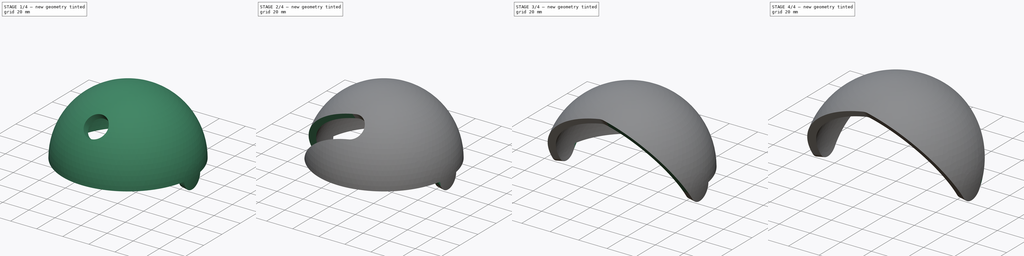
[diagram: build sequence overview — one tinted view per stage of 4, left to right]
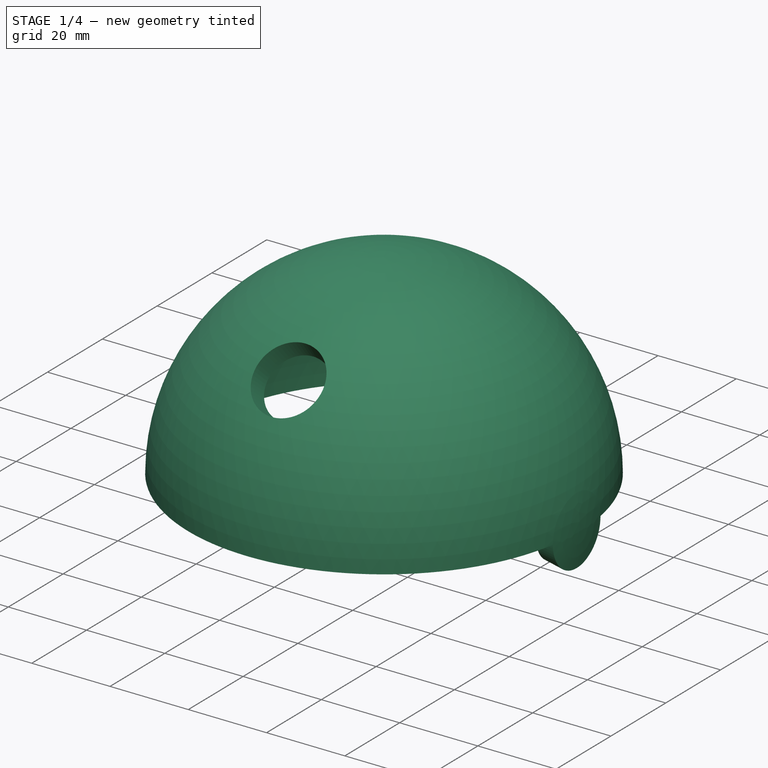
[diagram: stage 1 of 4 — iso view after this stage's code; geometry added in this stage tinted green]
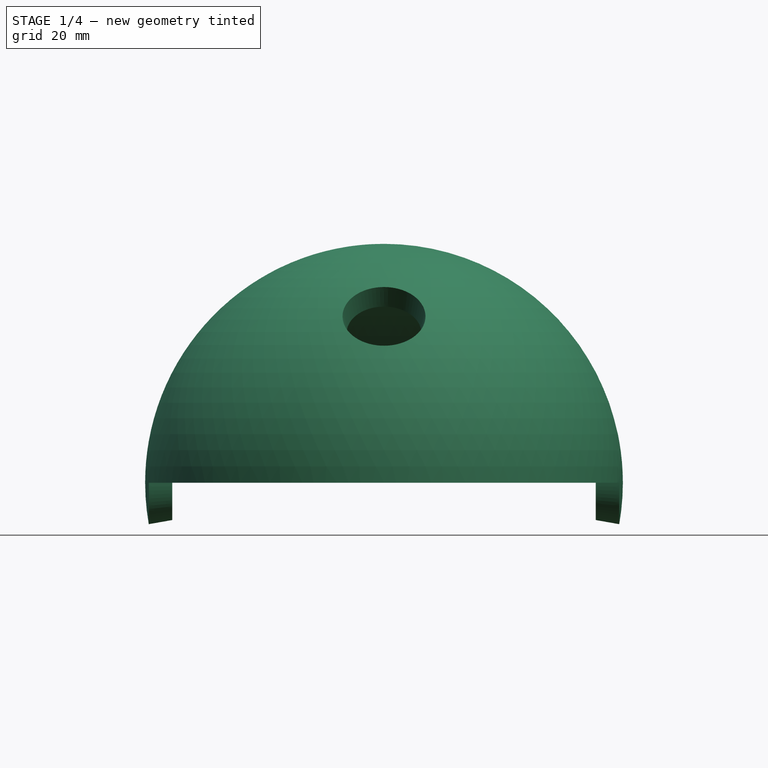
[diagram: stage 1 of 4 — front view after this stage's code; geometry added in this stage tinted green]
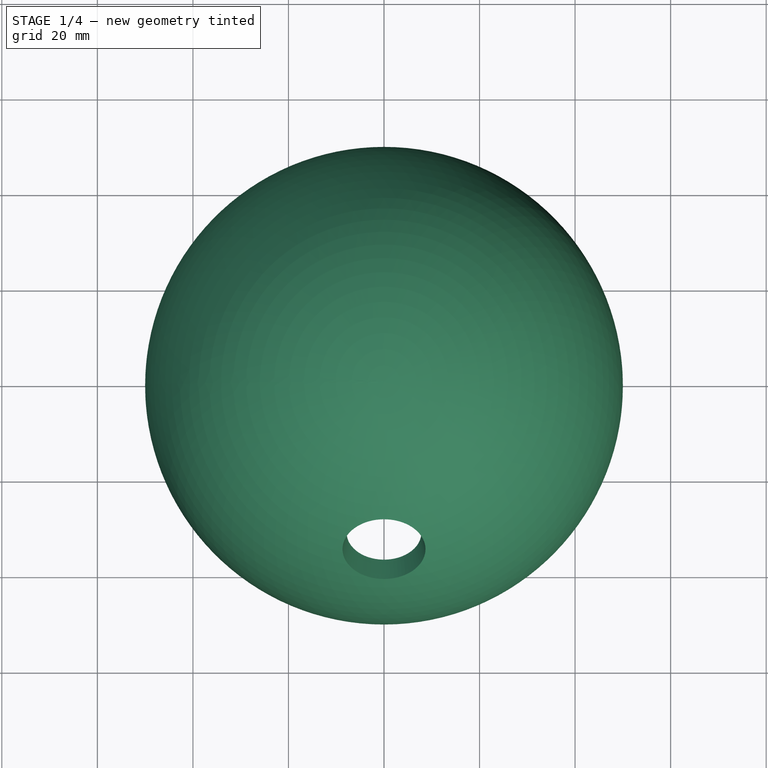
[diagram: stage 1 of 4 — top view after this stage's code; geometry added in this stage tinted green]
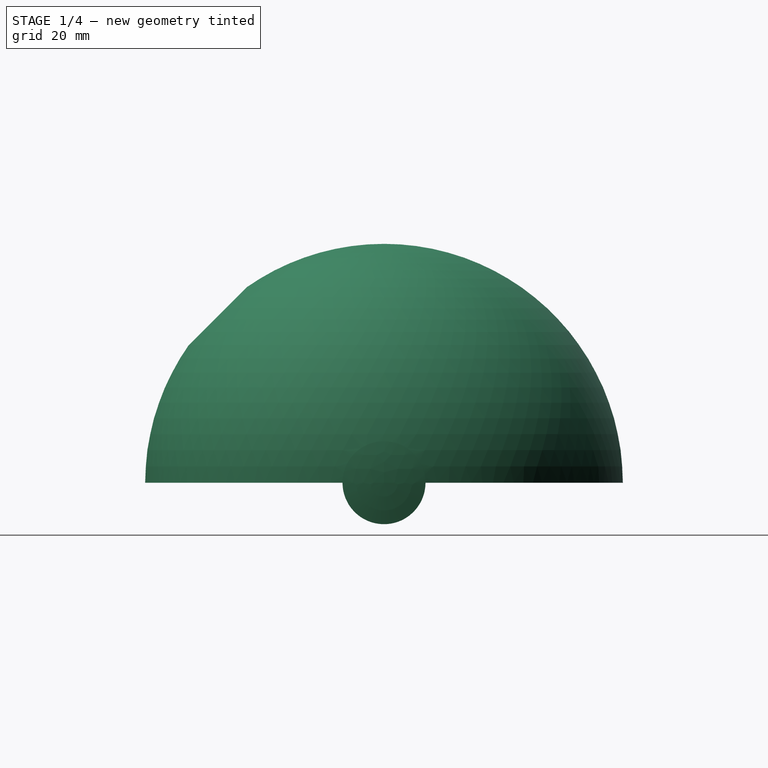
[diagram: stage 1 of 4 — right view after this stage's code; geometry added in this stage tinted green]
FCSTD DOCUMENT  (FreeCAD 0.20R29177 (Git))
Label: 2d_joint_3_0009
License: All rights reserved
LicenseURL: http://en.wikipedia.org/wiki/All_rights_reserved
objects: Sketcher::SketchObject×12, PartDesign::Plane×10, PartDesign::Revolution×6, PartDesign::Groove×6, PartDesign::CoordinateSystem×2, Spreadsheet::Sheet×1, PartDesign::Body×1, App::Part×1
note: 49 computed .brp shape members not serialized (recipe doc carries the construction recipe); baked Part::Feature solids carry a one-line shape summary decoded from their .brp

FEATURE [Spreadsheet::Sheet] Spreadsheet  label="Params"
  cells = A2=Inner Radius:; B2(InnerRadius)==45mm; A3=Outer Radius:; B3(OuterRadius)==50mm; A4=Eye Size:; B4(EyeSize)==10deg; A5=Front Range Of Motion:; B5(FrontROM)==45deg; A6=Back Range Of Motion:; B6(BackROM)==45deg; A9=Front Distance; B9(FrontD)==45deg; C9=*This is the distance between the center of the eye, and the middle between center of eye and center of eye gap, and it's alway 45 deg.; A10=Front Beta; B10(FrontBeta)==acos(tan(EyeSize) / tan(FrontD)); A11=Front Stop Width; B11(FrontStopWidth)==asin(sin(FrontBeta) * sin(FrontD)); A12=Front Stop Angle; B12(FrontStopAngle)==acos(tan(FrontStopWidth) / tan(FrontD)); A14=Back Distance; B14(BackD)==45deg; C14=*Hmm, there is no difference in the calculations of Back and Front Side; A15=Back Beta; B15(BackBeta)==acos(tan(EyeSize) / tan(BackD)); C15=The only actual DIfference is the Range of Motion; everything else is just rotated to match; A16=Back Stop Width; B16(BackStopWidth)==asin(sin(BackBeta) * sin(BackD)); A17=Back Stop Angle; B17(BackStopAngle)==acos(tan(BackStopWidth) / tan(BackD))
FEATURE [Sketcher::SketchObject] Sketch008
  FullyConstrained = true
  MapMode = 5
  Placement = pos=(0,0,0) rot=(1,0,0;1.5708rad)
  Support = -> [XZ_Plane005]
  expr: Constraints[10] = <<Params>>.OuterRadius
  expr: Constraints[11] = <<Params>>.InnerRadius
  sketch-geometry (4):
    g0: LineSegment StartX=-45 StartY=5.5e-15 StartZ=0 EndX=-50 EndY=6.1e-15 EndZ=0
    g1: LineSegment StartX=2.8e-15 StartY=45 StartZ=0 EndX=3.1e-15 EndY=50 EndZ=0
    g2: ArcOfCircle CenterX=0 CenterY=0 CenterZ=0 NormalX=0 NormalY=0 NormalZ=1 AngleXU=0 Radius=45 StartAngle=1.5708 EndAngle=3.14159
    g3: ArcOfCircle CenterX=0 CenterY=0 CenterZ=0 NormalX=0 NormalY=0 NormalZ=1 AngleXU=0 Radius=50 StartAngle=1.5708 EndAngle=3.14159
  constraints (12):
    c: PointOnObject(g0,g-1)
    c: PointOnObject(g0,g-1)
    c: PointOnObject(g1,g-2)
    c: PointOnObject(g1,g-2)
    c: Coincident(g2,g-1)
    c: Coincident(g2,g1)
    c: Coincident(g2,g0)
    c: Coincident(g3,g2)
    c: Coincident(g3,g1)
    c: Coincident(g3,g0)
    c: Radius(g3) = 50
    c: Radius(g2) = 45
FEATURE [PartDesign::Revolution] Revolution007  label="UpperHemisphere"
  Angle = 360
  Axis = (0,-2e-16,1)
  Base = (0,0,0)
  Placement = pos=(0,0,0) rot=(1,0,0;1.5708rad)
  Profile = -> Sketch008
  ReferenceAxis = -> Sketch008 [V_Axis]
  Refine = true
FEATURE [PartDesign::Plane] DatumPlane001  label="FrontGapPlane"
  AttachmentOffset = pos=(0,0,0) rot=(0,0,1;-0.785398rad)
  Length = 113.573
  MapMode = 4
  Placement = pos=(0,0,0) rot=(-0.678598,-0.281085,-0.678598;3.68962rad)
  ResizeMode = 0
  Support = -> [Revolution007]
  Width = 113.573
  expr: .AttachmentOffset.Rotation.Angle = -<<Params>>.FrontROM
FEATURE [Sketcher::SketchObject] Sketch
  FullyConstrained = true
  MapMode = 5
  Placement = pos=(0,0,0) rot=(0.678598,0.281085,0.678598;2.59356rad)
  Support = -> [DatumPlane001]
  expr: Constraints[10] = <<Params>>.OuterRadius
  expr: Constraints[7] = <<Params>>.EyeSize
  expr: Constraints[8] = <<Params>>.EyeSize
  expr: Constraints[9] = <<Params>>.InnerRadius
  sketch-geometry (5):
    g0: LineSegment StartX=0 StartY=45 StartZ=0 EndX=0 EndY=50 EndZ=0
    g1: LineSegment StartX=7.81417 StartY=44.3163 StartZ=0 EndX=8.68241 EndY=49.2404 EndZ=0
    g2: LineSegment StartX=7.81417 StartY=44.3163 StartZ=0 EndX=9e-16 EndY=0 EndZ=0
    g3: ArcOfCircle CenterX=0 CenterY=0 CenterZ=0 NormalX=0 NormalY=0 NormalZ=1 AngleXU=0 Radius=45 StartAngle=1.39626 EndAngle=1.5708
    g4: ArcOfCircle CenterX=0 CenterY=0 CenterZ=0 NormalX=0 NormalY=0 NormalZ=1 AngleXU=0 Radius=50 StartAngle=1.39626 EndAngle=1.5708
  constraints (14):
    c: PointOnObject(g0,g-2)
    c: PointOnObject(g0,g-2)
    c: Coincident(g2,g1)
    c: Coincident(g3,g1)
    c: Coincident(g3,g0)
    c: Coincident(g4,g1)
    c: Coincident(g4,g0)
    c: Angle(g2,g0) = 0.174533
    c: Angle(g1,g0) = 0.174533
    c: Radius(g3) = 45
    c: Radius(g4) = 50
    c: Coincident(g-1,g2)
    c: Coincident(g2,g4)
    c: Coincident(g4,g3)
FEATURE [Sketcher::SketchObject] Sketch009
  FullyConstrained = true
  MapMode = 5
  Placement = pos=(0,0,0) rot=(1,0,0;1.5708rad)
  Support = -> [XZ_Plane005]
  expr: Constraints[10] = <<Params>>.EyeSize
  expr: Constraints[11] = <<Params>>.EyeSize
  expr: Constraints[12] = <<Params>>.InnerRadius
  expr: Constraints[13] = <<Params>>.OuterRadius
  expr: Constraints[24] = <<Params>>.EyeSize
  expr: Constraints[25] = <<Params>>.EyeSize
  expr: Constraints[26] = <<Params>>.InnerRadius
  expr: Constraints[27] = <<Params>>.OuterRadius
  sketch-geometry (10):
    g0: LineSegment StartX=-45 StartY=5.5e-15 StartZ=0 EndX=-50 EndY=6.1e-15 EndZ=0
    g1: LineSegment StartX=-44.3163 StartY=7.81417 StartZ=0 EndX=-49.2404 EndY=8.68241 EndZ=0
    g2: LineSegment StartX=-44.3163 StartY=7.81417 StartZ=0 EndX=0 EndY=0 EndZ=0
    g3: ArcOfCircle CenterX=0 CenterY=0 CenterZ=0 NormalX=0 NormalY=0 NormalZ=1 AngleXU=0 Radius=45 StartAngle=2.96706 EndAngle=3.14159
    g4: ArcOfCircle CenterX=0 CenterY=0 CenterZ=0 NormalX=0 NormalY=0 NormalZ=1 AngleXU=0 Radius=50 StartAngle=2.96706 EndAngle=3.14159
    g5: LineSegment StartX=45 StartY=0 StartZ=0 EndX=50 EndY=0 EndZ=0
    g6: LineSegment StartX=44.3163 StartY=7.81417 StartZ=0 EndX=49.2404 EndY=8.68241 EndZ=0
    g7: LineSegment StartX=44.3163 StartY=7.81417 StartZ=0 EndX=0 EndY=0 EndZ=0
    g8: ArcOfCircle CenterX=0 CenterY=0 CenterZ=0 NormalX=0 NormalY=0 NormalZ=1 AngleXU=0 Radius=45 StartAngle=0 EndAngle=0.174533
    g9: ArcOfCircle CenterX=0 CenterY=0 CenterZ=0 NormalX=0 NormalY=0 NormalZ=1 AngleXU=0 Radius=50 StartAngle=0 EndAngle=0.174533
  constraints (28):
    c: PointOnObject(g0,g-1)
    c: PointOnObject(g0,g-1)
    c: Coincident(g2,g1)
    c: Coincident(g2,g-1)
    c: Coincident(g3,g2)
    c: Coincident(g3,g1)
    c: Coincident(g3,g0)
    c: Coincident(g4,g3)
    c: Coincident(g4,g1)
    c: Coincident(g4,g0)
    c: Angle(g2,g0) = 0.174533
    c: Angle(g1,g0) = 0.174533
    c: Radius(g3) = 45
    c: Radius(g4) = 50
    c: PointOnObject(g5,g-1)
    c: Horizontal(g5)
    c: Coincident(g7,g6)
    c: Coincident(g7,g3)
    c: Coincident(g8,g3)
    c: Coincident(g8,g5)
    c: Coincident(g8,g6)
    c: Coincident(g9,g3)
    c: Coincident(g9,g5)
    c: Coincident(g9,g6)
    c: Angle(g5,g6) = 0.174533
    c: Angle(g5,g7) = 0.174533
    c: Radius(g8) = 45
    c: Radius(g9) = 50
FEATURE [PartDesign::Revolution] Revolution  label="Eyes"
  Angle = 360
  Axis = (1,0,0)
  Base = (0,0,0)
  BaseFeature = -> Revolution007
  Placement = pos=(0,0,0) rot=(1,0,0;1.5708rad)
  Profile = -> Sketch009
  ReferenceAxis = -> Sketch009 [H_Axis]
  Refine = true
FEATURE [PartDesign::Groove] Groove  label="FrontGap"
  Angle = 360
  Axis = (2e-16,-0.707107,0.707107)
  Base = (0,0,0)
  BaseFeature = -> Revolution
  Placement = pos=(0,0,0) rot=(1,0,0;1.5708rad)
  Profile = -> Sketch
  ReferenceAxis = -> Sketch [V_Axis]
  Refine = true
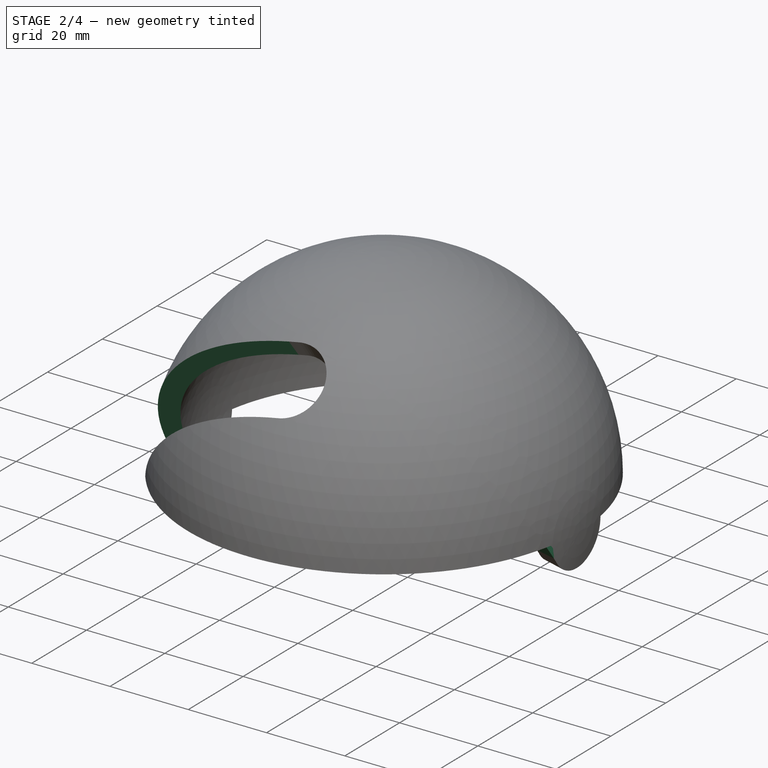
[diagram: stage 2 of 4 — iso view after this stage's code; geometry added in this stage tinted green]
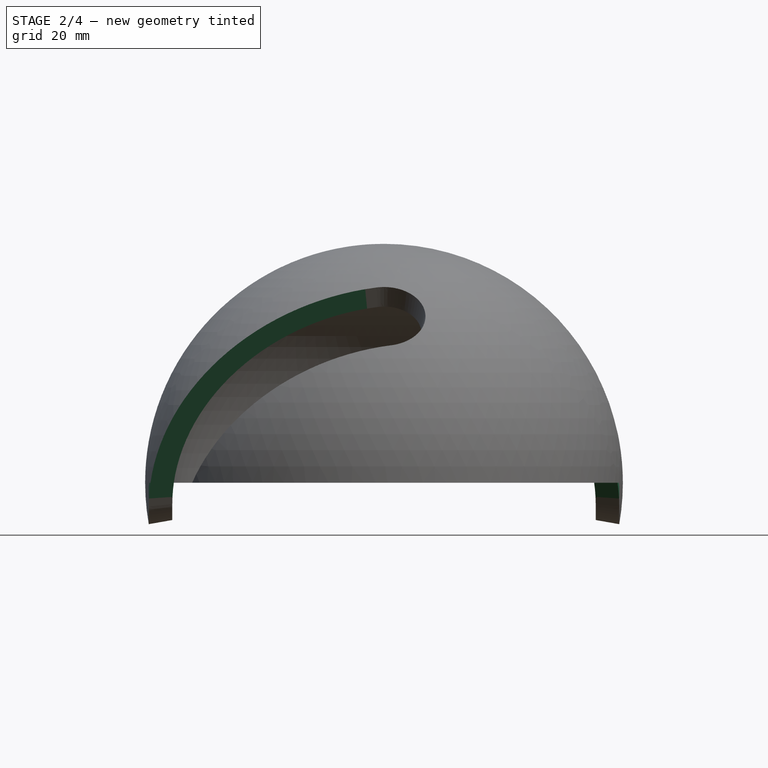
[diagram: stage 2 of 4 — front view after this stage's code; geometry added in this stage tinted green]
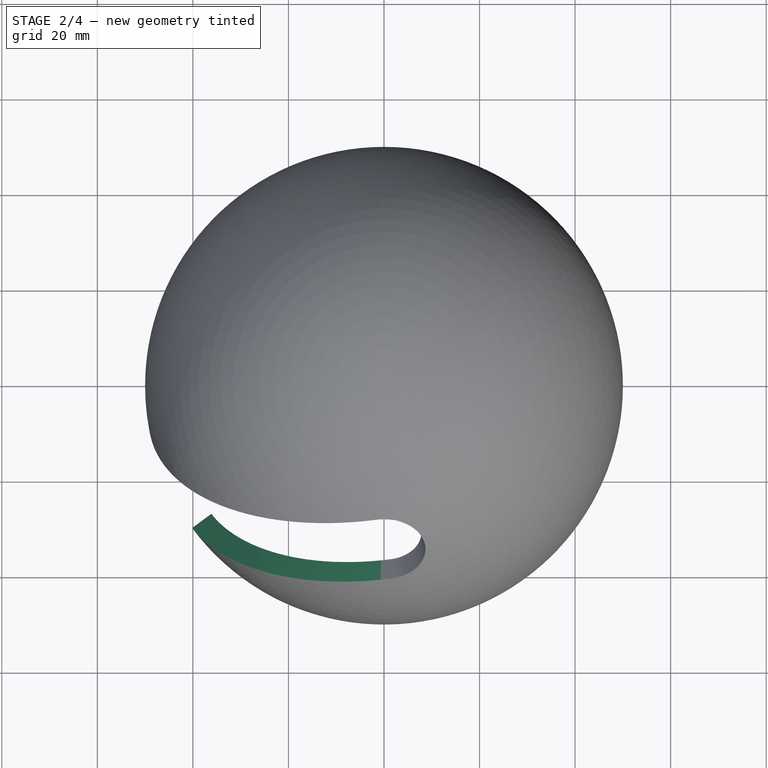
[diagram: stage 2 of 4 — top view after this stage's code; geometry added in this stage tinted green]
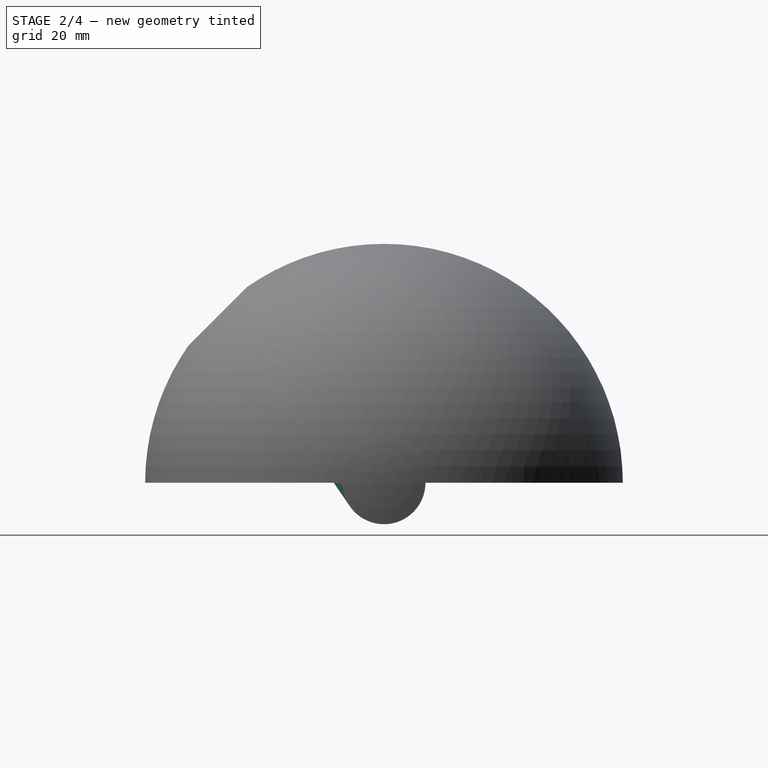
[diagram: stage 2 of 4 — right view after this stage's code; geometry added in this stage tinted green]
FEATURE [PartDesign::CoordinateSystem] Local_CS  label="FrontTiltCS"
  AttacherType = Attacher::AttachEngine3D
  AttachmentOffset = pos=(0,0,0) rot=(1,0,0;-0.785398rad)
  MapMode = 2
  Placement = pos=(0,0,0) rot=(-1,0,0;5.49779rad)
  Support = -> [Revolution007]
  expr: .AttachmentOffset.Rotation.Angle = -<<Params>>.FrontROM
FEATURE [PartDesign::Plane] DatumPlane002  label="FrontLeftPlane"
  AttachmentOffset = pos=(0,0,0) rot=(0,1,0;0.785398rad)
  Length = 160.461
  MapMode = 2
  Placement = pos=(0,0,0) rot=(0.678598,0.678598,0.281085;1.09606rad)
  ResizeMode = 0
  Support = -> [Local_CS]
  Width = 117.471
  expr: .AttachmentOffset.Rotation.Angle = <<Params>>.FrontD
FEATURE [PartDesign::Plane] DatumPlane  label="FrontLeftStopPlane"
  AttachmentOffset = pos=(0,0,0) rot=(1,0,0;-0.248113rad)
  Length = 161.92
  MapMode = 2
  Placement = pos=(0,0,0) rot=(-0.539524,-0.732031,-0.415986;5.33954rad)
  ResizeMode = 0
  Support = -> [DatumPlane002]
  Width = 131.413
  expr: .AttachmentOffset.Rotation.Angle = -<<Params>>.FrontStopAngle
FEATURE [Sketcher::SketchObject] Sketch010
  FullyConstrained = true
  MapMode = 5
  Placement = pos=(0,0,0) rot=(0.539524,0.732031,0.415986;0.943643rad)
  Support = -> [DatumPlane]
  expr: Constraints[12] = <<Params>>.EyeSize
  expr: Constraints[13] = <<Params>>.EyeSize
  expr: Constraints[16] = <<Params>>.InnerRadius
  expr: Constraints[17] = <<Params>>.OuterRadius
  expr: Constraints[18] = <<Params>>.OuterRadius
  sketch-geometry (7):
    g0: LineSegment StartX=-45 StartY=5.5e-15 StartZ=0 EndX=-50 EndY=6.1e-15 EndZ=0
    g1: LineSegment StartX=-44.3163 StartY=7.81417 StartZ=0 EndX=-49.2404 EndY=8.68241 EndZ=0
    g2: LineSegment StartX=0 StartY=0 StartZ=0 EndX=-44.3163 EndY=7.81417 EndZ=0
    g3: LineSegment StartX=0 StartY=0 StartZ=0 EndX=-45 EndY=5.5e-15 EndZ=0
    g4: ArcOfCircle CenterX=0 CenterY=0 CenterZ=0 NormalX=0 NormalY=0 NormalZ=1 AngleXU=0 Radius=45 StartAngle=2.96706 EndAngle=3.14159
    g5: ArcOfCircle CenterX=0 CenterY=0 CenterZ=0 NormalX=0 NormalY=0 NormalZ=1 AngleXU=0 Radius=50 StartAngle=2.96706 EndAngle=3.14159
    g6: LineSegment StartX=0 StartY=0 StartZ=0 EndX=-50 EndY=0 EndZ=0
  constraints (19):
    c: Coincident(g2,g-1)
    c: Coincident(g2,g1)
    c: Coincident(g3,g2)
    c: Coincident(g3,g0)
    c: Coincident(g4,g2)
    c: Coincident(g4,g1)
    c: Coincident(g4,g0)
    c: Coincident(g5,g4)
    c: Coincident(g5,g1)
    c: Coincident(g5,g0)
    c: Coincident(g6,g4)
    c: Horizontal(g6)
    c: Angle(g1,g6) = 0.174533
    c: Angle(g2,g6) = 0.174533
    c: Angle(g6,g0) = 0
    c: Angle(g6,g3) = 0
    c: Radius(g4) = 45
    c: Radius(g5) = 50
    c: DistanceX(g6,g6) = 50
FEATURE [PartDesign::Revolution] Revolution008  label="FrontLeftStop"
  Angle = 88.2183
  Axis = (-0.173648,0.808241,0.562666)
  Base = (0,0,0)
  BaseFeature = -> Groove
  Midplane = true
  Placement = pos=(0,0,0) rot=(1,0,0;1.5708rad)
  Profile = -> Sketch010
  ReferenceAxis = -> Sketch010 [V_Axis]
  Refine = true
  expr: Angle = 2 * <<Params>>.FrontStopWidth
FEATURE [Sketcher::SketchObject] Sketch011
  FullyConstrained = true
  MapMode = 5
  Placement = pos=(0,0,0) rot=(0.539524,0.732031,0.415986;0.943643rad)
  Support = -> [DatumPlane]
  expr: Constraints[10] = 2 * <<Params>>.EyeSize
  expr: Constraints[11] = 2 * <<Params>>.EyeSize
  expr: Constraints[12] = <<Params>>.InnerRadius
  expr: Constraints[13] = <<Params>>.OuterRadius
  sketch-geometry (5):
    g0: LineSegment StartX=-45 StartY=0 StartZ=0 EndX=-50 EndY=0 EndZ=0
    g1: LineSegment StartX=-42.2862 StartY=-15.3909 StartZ=0 EndX=-46.9846 EndY=-17.101 EndZ=0
    g2: LineSegment StartX=0 StartY=0 StartZ=0 EndX=-42.2862 EndY=-15.3909 EndZ=0
    g3: ArcOfCircle CenterX=0 CenterY=0 CenterZ=0 NormalX=0 NormalY=0 NormalZ=1 AngleXU=0 Radius=45 StartAngle=3.14159 EndAngle=3.49066
    g4: ArcOfCircle CenterX=0 CenterY=0 CenterZ=0 NormalX=0 NormalY=0 NormalZ=1 AngleXU=0 Radius=50 StartAngle=3.14159 EndAngle=3.49066
  constraints (14):
    c: PointOnObject(g0,g-1)
    c: PointOnObject(g0,g-1)
    c: Coincident(g2,g-1)
    c: Coincident(g2,g1)
    c: Coincident(g3,g2)
    c: Coincident(g3,g0)
    c: Coincident(g3,g1)
    c: Coincident(g4,g3)
    c: Coincident(g4,g0)
    c: Coincident(g4,g1)
    c: Angle(g0,g2) = 0.349066
    c: Angle(g0,g1) = 0.349066
    c: Radius(g3) = 45
    c: Radius(g4) = 50
FEATURE [PartDesign::Groove] Groove001  label="FrontLeftGap"
  Angle = 88.2183
  Axis = (-0.173648,0.808241,0.562666)
  Base = (0,0,0)
  BaseFeature = -> Revolution008
  Midplane = true
  Placement = pos=(0,0,0) rot=(1,0,0;1.5708rad)
  Profile = -> Sketch011
  ReferenceAxis = -> Sketch011 [V_Axis]
  Refine = true
  Reversed = true
  expr: Angle = 2 * <<Params>>.FrontStopWidth
FEATURE [PartDesign::Plane] DatumPlane004  label="FrontRightPlane"
  AttachmentOffset = pos=(0,0,0) rot=(0,1,0;-0.785398rad)
  Length = 160.461
  MapMode = 2
  Placement = pos=(0,0,0) rot=(-0.678598,0.678598,0.281085;5.18713rad)
  ResizeMode = 0
  Support = -> [Local_CS]
  Width = 117.471
  expr: .AttachmentOffset.Rotation.Angle = -<<Params>>.FrontD
FEATURE [PartDesign::Plane] DatumPlane003  label="FrontRightStopPlane"
  AttachmentOffset = pos=(0,0,0) rot=(1,0,0;-0.248113rad)
  Length = 161.92
  MapMode = 2
  Placement = pos=(0,0,0) rot=(-0.539524,0.732031,0.415986;5.33954rad)
  ResizeMode = 0
  Support = -> [DatumPlane004]
  Width = 131.413
  expr: .AttachmentOffset.Rotation.Angle = -<<Params>>.FrontStopAngle
FEATURE [Sketcher::SketchObject] Sketch012
  FullyConstrained = true
  MapMode = 5
  Placement = pos=(0,0,0) rot=(0.539524,-0.732031,-0.415986;0.943643rad)
  Support = -> [DatumPlane003]
  expr: Constraints[10] = <<Params>>.EyeSize
  expr: Constraints[11] = <<Params>>.EyeSize
  expr: Constraints[12] = <<Params>>.InnerRadius
  expr: Constraints[13] = <<Params>>.OuterRadius
  sketch-geometry (5):
    g0: LineSegment StartX=45 StartY=0 StartZ=0 EndX=50 EndY=0 EndZ=0
    g1: LineSegment StartX=44.3163 StartY=7.81417 StartZ=0 EndX=49.2404 EndY=8.68241 EndZ=0
    g2: ArcOfCircle CenterX=0 CenterY=0 CenterZ=0 NormalX=0 NormalY=0 NormalZ=1 AngleXU=0 Radius=45 StartAngle=0 EndAngle=0.174533
    g3: ArcOfCircle CenterX=0 CenterY=0 CenterZ=0 NormalX=0 NormalY=0 NormalZ=1 AngleXU=0 Radius=50 StartAngle=0 EndAngle=0.174533
    g4: LineSegment StartX=44.3163 StartY=7.81417 StartZ=0 EndX=0 EndY=0 EndZ=0
  constraints (14):
    c: PointOnObject(g0,g-1)
    c: PointOnObject(g0,g-1)
    c: Coincident(g2,g-1)
    c: Coincident(g2,g0)
    c: Coincident(g2,g1)
    c: Coincident(g3,g2)
    c: Coincident(g3,g0)
    c: Coincident(g3,g1)
    c: Coincident(g4,g1)
    c: Coincident(g4,g2)
    c: Angle(g0,g4) = 0.174533
    c: Angle(g0,g1) = 0.174533
    c: Radius(g2) = 45
    c: Radius(g3) = 50
FEATURE [PartDesign::Revolution] Revolution009  label="FrontRightStop"
  Angle = 88.2183
  Axis = (0.173648,0.808241,0.562666)
  Base = (0,0,0)
  BaseFeature = -> Groove001
  Midplane = true
  Placement = pos=(0,0,0) rot=(1,0,0;1.5708rad)
  Profile = -> Sketch012
  ReferenceAxis = -> Sketch012 [V_Axis]
  Refine = true
  Reversed = true
  expr: Angle = 2 * <<Params>>.FrontStopWidth
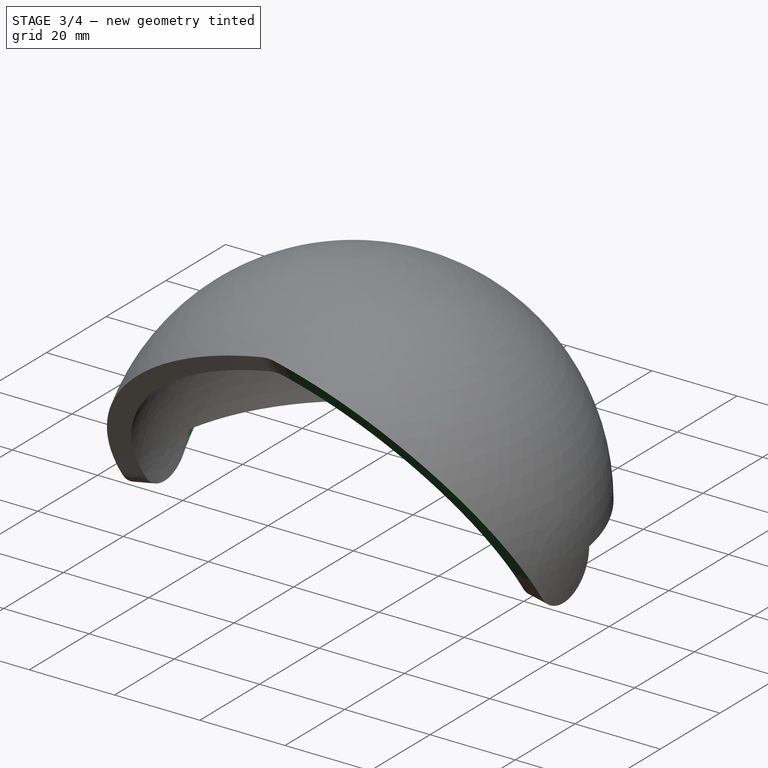
[diagram: stage 3 of 4 — iso view after this stage's code; geometry added in this stage tinted green]
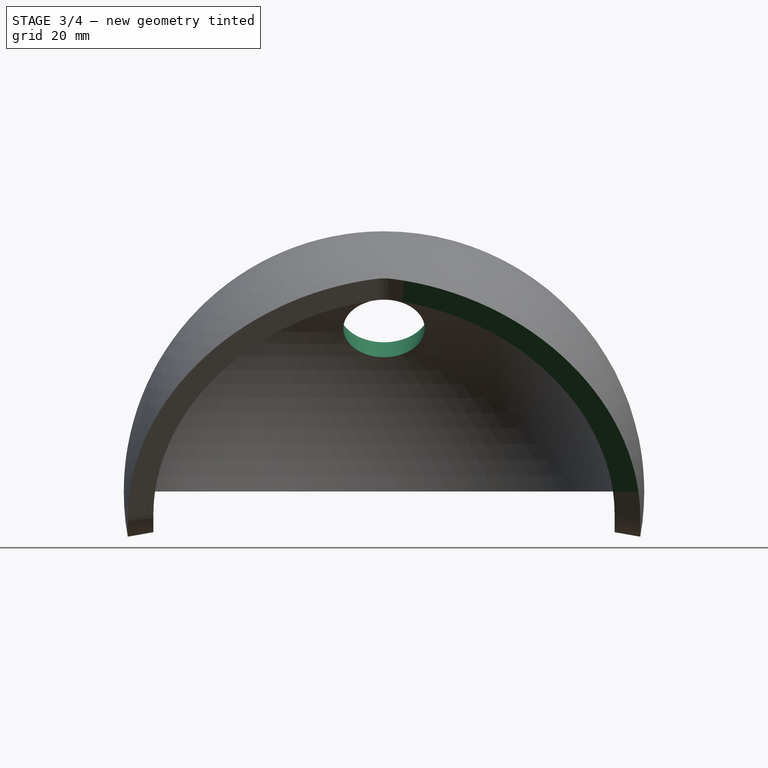
[diagram: stage 3 of 4 — front view after this stage's code; geometry added in this stage tinted green]
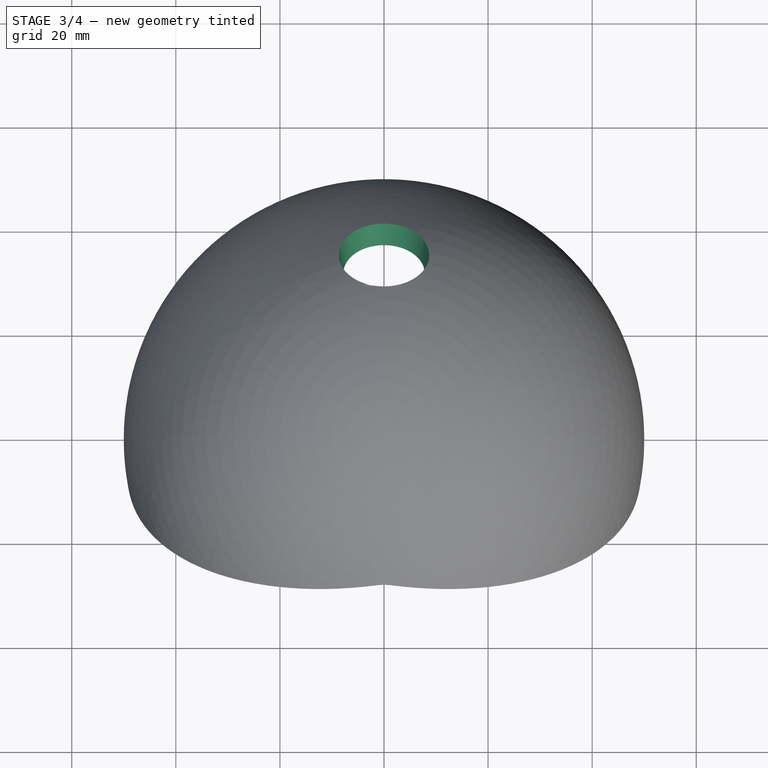
[diagram: stage 3 of 4 — top view after this stage's code; geometry added in this stage tinted green]
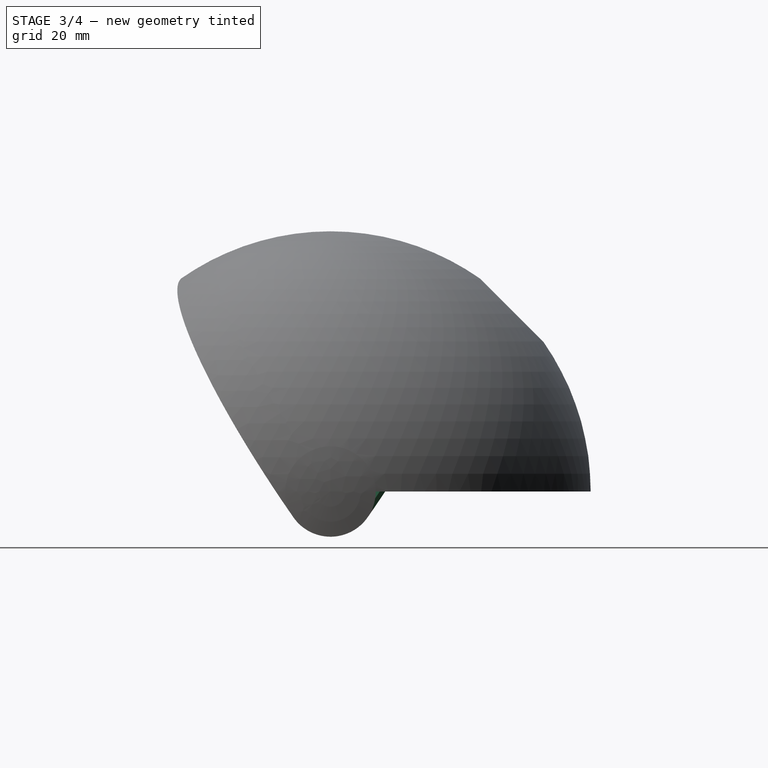
[diagram: stage 3 of 4 — right view after this stage's code; geometry added in this stage tinted green]
FEATURE [Sketcher::SketchObject] Sketch013
  FullyConstrained = true
  MapMode = 5
  Placement = pos=(0,0,0) rot=(0.539524,-0.732031,-0.415986;0.943643rad)
  Support = -> [DatumPlane003]
  expr: Constraints[10] = 2 * <<Params>>.EyeSize
  expr: Constraints[11] = 2 * <<Params>>.EyeSize
  expr: Constraints[12] = <<Params>>.InnerRadius
  expr: Constraints[13] = <<Params>>.OuterRadius
  sketch-geometry (5):
    g0: LineSegment StartX=45 StartY=0 StartZ=0 EndX=50 EndY=0 EndZ=0
    g1: LineSegment StartX=42.2862 StartY=-15.3909 StartZ=0 EndX=46.9846 EndY=-17.101 EndZ=0
    g2: LineSegment StartX=42.2862 StartY=-15.3909 StartZ=0 EndX=0 EndY=0 EndZ=0
    g3: ArcOfCircle CenterX=0 CenterY=0 CenterZ=0 NormalX=0 NormalY=0 NormalZ=1 AngleXU=0 Radius=45 StartAngle=5.93412 EndAngle=6.28319
    g4: ArcOfCircle CenterX=0 CenterY=0 CenterZ=0 NormalX=0 NormalY=0 NormalZ=1 AngleXU=0 Radius=50 StartAngle=5.93412 EndAngle=6.28319
  constraints (14):
    c: PointOnObject(g0,g-1)
    c: PointOnObject(g0,g-1)
    c: Coincident(g2,g1)
    c: Coincident(g2,g-1)
    c: Coincident(g3,g2)
    c: Coincident(g3,g1)
    c: Coincident(g3,g0)
    c: Coincident(g4,g3)
    c: Coincident(g4,g1)
    c: Coincident(g4,g0)
    c: Angle(g2,g0) = 0.349066
    c: Angle(g1,g0) = 0.349066
    c: Radius(g3) = 45
    c: Radius(g4) = 50
FEATURE [PartDesign::Groove] Groove002  label="FrontRightGap"
  Angle = 88.2183
  Axis = (0.173648,0.808241,0.562666)
  Base = (0,0,0)
  BaseFeature = -> Revolution009
  Midplane = true
  Placement = pos=(0,0,0) rot=(1,0,0;1.5708rad)
  Profile = -> Sketch013
  ReferenceAxis = -> Sketch013 [V_Axis]
  Refine = true
  expr: Angle = 2 * <<Params>>.FrontStopWidth
FEATURE [PartDesign::CoordinateSystem] Local_CS001  label="BackTiltCS"
  AttacherType = Attacher::AttachEngine3D
  AttachmentOffset = pos=(0,0,0) rot=(1,0,0;0.785398rad)
  MapMode = 2
  Placement = pos=(0,0,0) rot=(1,0,0;2.35619rad)
  Support = -> [Revolution007]
  expr: .AttachmentOffset.Rotation.Angle = <<Params>>.BackROM
FEATURE [PartDesign::Plane] DatumPlane005  label="BackGapPlane"
  AttachmentOffset = pos=(0,0,0) rot=(0,0,1;0.785398rad)
  Length = 113.573
  MapMode = 4
  Placement = pos=(0,0,0) rot=(0.678598,-0.281085,0.678598;3.68962rad)
  ResizeMode = 0
  Support = -> [Revolution007]
  Width = 113.573
  expr: .AttachmentOffset.Rotation.Angle = <<Params>>.BackROM
FEATURE [Sketcher::SketchObject] Sketch014
  FullyConstrained = true
  MapMode = 5
  Placement = pos=(0,0,0) rot=(0.678598,-0.281085,0.678598;3.68962rad)
  Support = -> [DatumPlane005]
  expr: Constraints[10] = <<Params>>.EyeSize
  expr: Constraints[11] = <<Params>>.EyeSize
  expr: Constraints[12] = <<Params>>.InnerRadius
  expr: Constraints[13] = <<Params>>.OuterRadius
  sketch-geometry (5):
    g0: LineSegment StartX=-8.3e-15 StartY=-45 StartZ=0 EndX=-9.2e-15 EndY=-50 EndZ=0
    g1: LineSegment StartX=7.81417 StartY=-44.3163 StartZ=0 EndX=8.68241 EndY=-49.2404 EndZ=0
    g2: LineSegment StartX=7.81417 StartY=-44.3163 StartZ=0 EndX=0 EndY=0 EndZ=0
    g3: ArcOfCircle CenterX=0 CenterY=0 CenterZ=0 NormalX=0 NormalY=0 NormalZ=1 AngleXU=0 Radius=45 StartAngle=4.71239 EndAngle=4.88692
    g4: ArcOfCircle CenterX=0 CenterY=0 CenterZ=0 NormalX=0 NormalY=0 NormalZ=1 AngleXU=0 Radius=50 StartAngle=4.71239 EndAngle=4.88692
  constraints (14):
    c: PointOnObject(g0,g-2)
    c: PointOnObject(g0,g-2)
    c: Coincident(g2,g1)
    c: Coincident(g2,g-1)
    c: Coincident(g3,g2)
    c: Coincident(g3,g0)
    c: Coincident(g3,g1)
    c: Coincident(g4,g3)
    c: Coincident(g4,g0)
    c: Coincident(g4,g1)
    c: Angle(g0,g2) = 0.174533
    c: Angle(g0,g1) = 0.174533
    c: Radius(g3) = 45
    c: Radius(g4) = 50
FEATURE [PartDesign::Groove] Groove003  label="BackGap"
  Angle = 360
  Axis = (0,-0.707107,-0.707107)
  Base = (0,0,0)
  BaseFeature = -> Groove002
  Placement = pos=(0,0,0) rot=(1,0,0;1.5708rad)
  Profile = -> Sketch014
  ReferenceAxis = -> Sketch014 [V_Axis]
  Refine = true
FEATURE [PartDesign::Plane] DatumPlane006  label="BackLeftPlane"
  AttachmentOffset = pos=(0,0,0) rot=(0,1,0;-0.785398rad)
  Length = 160.461
  MapMode = 2
  Placement = pos=(0,0,0) rot=(-0.912487,0.156558,0.377964;3.86433rad)
  ResizeMode = 0
  Support = -> [Local_CS001]
  Width = 117.471
  expr: .AttachmentOffset.Rotation.Angle = -<<Params>>.BackD
FEATURE [PartDesign::Plane] DatumPlane007  label="BackLeftStopPlane"
  AttachmentOffset = pos=(0,0,0) rot=(1,0,0;0.248113rad)
  Length = 161.92
  MapMode = 2
  Placement = pos=(0,0,0) rot=(0.918795,-0.195024,-0.343194;2.6461rad)
  ResizeMode = 0
  Support = -> [DatumPlane006]
  Width = 131.413
  expr: .AttachmentOffset.Rotation.Angle = <<Params>>.FrontStopAngle
FEATURE [Sketcher::SketchObject] Sketch015
  FullyConstrained = true
  MapMode = 5
  Placement = pos=(0,0,0) rot=(0.918795,-0.195024,-0.343194;2.6461rad)
  Support = -> [DatumPlane007]
  expr: Constraints[10] = <<Params>>.EyeSize
  expr: Constraints[11] = <<Params>>.EyeSize
  expr: Constraints[12] = <<Params>>.InnerRadius
  expr: Constraints[13] = <<Params>>.OuterRadius
  sketch-geometry (5):
    g0: LineSegment StartX=-45 StartY=0 StartZ=0 EndX=-50 EndY=6.1e-15 EndZ=0
    g1: LineSegment StartX=-44.3163 StartY=7.81417 StartZ=0 EndX=-49.2404 EndY=8.68241 EndZ=0
    g2: LineSegment StartX=-44.3163 StartY=7.81417 StartZ=0 EndX=0 EndY=0 EndZ=0
    g3: ArcOfCircle CenterX=0 CenterY=0 CenterZ=0 NormalX=0 NormalY=0 NormalZ=1 AngleXU=0 Radius=45 StartAngle=2.96706 EndAngle=3.14159
    g4: ArcOfCircle CenterX=0 CenterY=0 CenterZ=0 NormalX=0 NormalY=0 NormalZ=1 AngleXU=0 Radius=50 StartAngle=2.96706 EndAngle=3.14159
  constraints (14):
    c: PointOnObject(g0,g-1)
    c: PointOnObject(g0,g-1)
    c: Coincident(g2,g1)
    c: Coincident(g2,g-1)
    c: Coincident(g3,g2)
    c: Coincident(g3,g1)
    c: Coincident(g3,g0)
    c: Coincident(g4,g3)
    c: Coincident(g4,g1)
    c: Coincident(g4,g0)
    c: Angle(g2,g0) = 0.174533
    c: Angle(g1,g0) = 0.174533
    c: Radius(g3) = 45
    c: Radius(g4) = 50
FEATURE [PartDesign::Revolution] Revolution010  label="BackLeftStop"
  Angle = 88.2183
  Axis = (-0.173648,-0.808241,0.562666)
  Base = (0,0,0)
  BaseFeature = -> Groove003
  Midplane = true
  Placement = pos=(0,0,0) rot=(1,0,0;1.5708rad)
  Profile = -> Sketch015
  ReferenceAxis = -> Sketch015 [V_Axis]
  Refine = true
  expr: Angle = 2 * <<Params>>.BackStopWidth
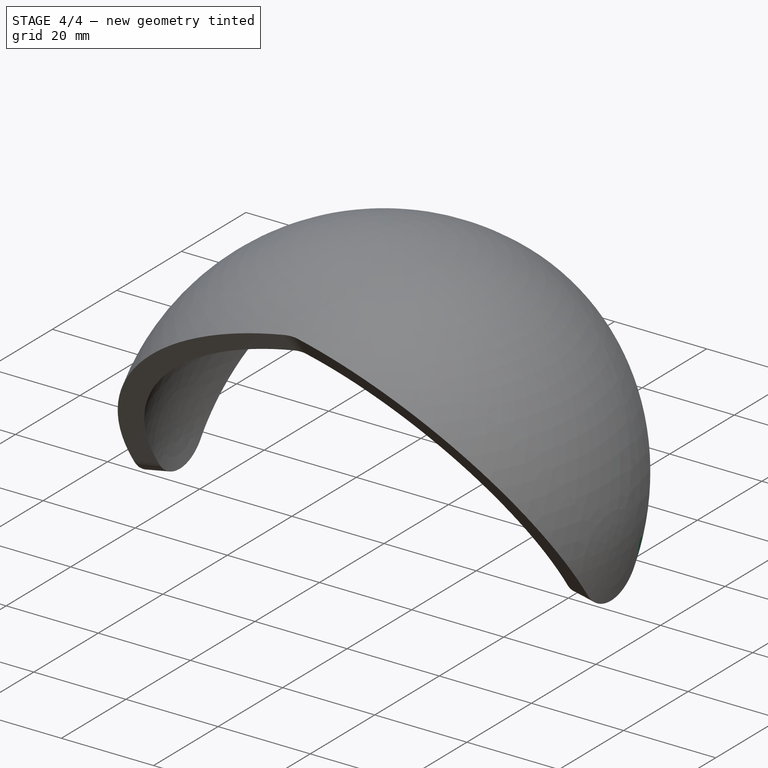
[diagram: stage 4 of 4 — iso view after this stage's code; geometry added in this stage tinted green]
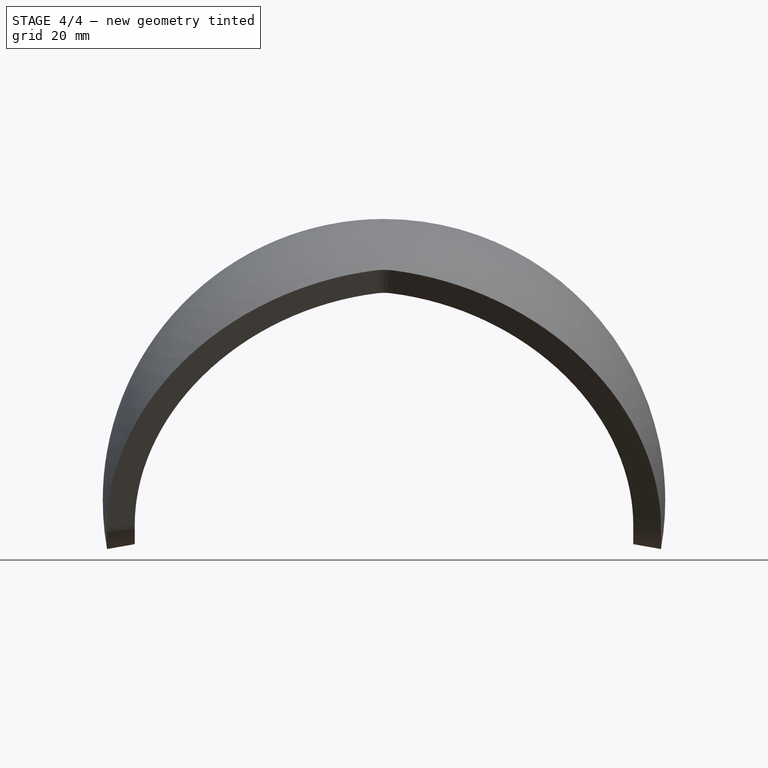
[diagram: stage 4 of 4 — front view after this stage's code; geometry added in this stage tinted green]
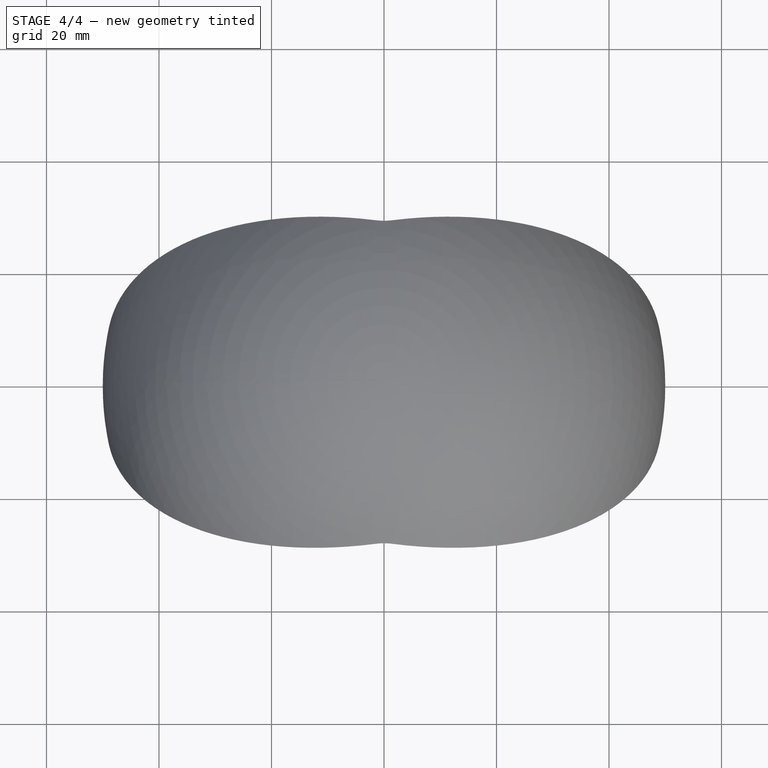
[diagram: stage 4 of 4 — top view after this stage's code; geometry added in this stage tinted green]
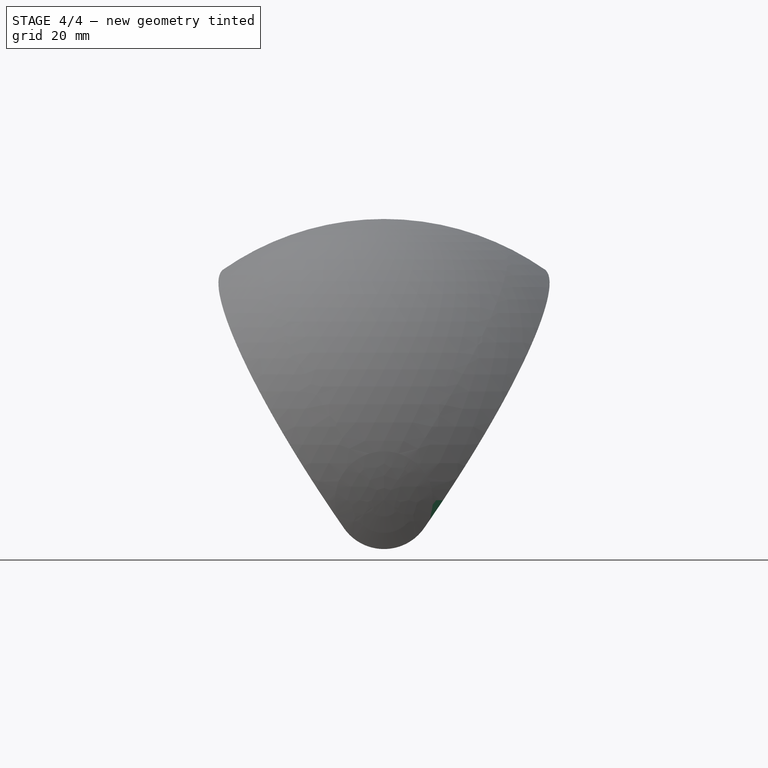
[diagram: stage 4 of 4 — right view after this stage's code; geometry added in this stage tinted green]
FEATURE [Sketcher::SketchObject] Sketch016
  FullyConstrained = true
  MapMode = 5
  Placement = pos=(0,0,0) rot=(0.918795,-0.195024,-0.343194;2.6461rad)
  Support = -> [DatumPlane007]
  expr: Constraints[10] = 2 * <<Params>>.EyeSize
  expr: Constraints[11] = <<Params>>.InnerRadius
  expr: Constraints[13] = <<Params>>.OuterRadius
  expr: Constraints[7] = 2 * <<Params>>.EyeSize
  sketch-geometry (5):
    g0: LineSegment StartX=-45 StartY=0 StartZ=0 EndX=-50 EndY=0 EndZ=0
    g1: LineSegment StartX=-42.2862 StartY=-15.3909 StartZ=0 EndX=-46.9846 EndY=-17.101 EndZ=0
    g2: ArcOfCircle CenterX=0 CenterY=0 CenterZ=0 NormalX=0 NormalY=0 NormalZ=1 AngleXU=0 Radius=45 StartAngle=3.14159 EndAngle=3.49066
    g3: ArcOfCircle CenterX=0 CenterY=0 CenterZ=0 NormalX=0 NormalY=0 NormalZ=1 AngleXU=0 Radius=50 StartAngle=3.14159 EndAngle=3.49066
    g4: LineSegment StartX=-42.2862 StartY=-15.3909 StartZ=0 EndX=0 EndY=0 EndZ=0
  constraints (14):
    c: PointOnObject(g0,g-1)
    c: PointOnObject(g0,g-1)
    c: Coincident(g2,g0)
    c: Coincident(g2,g1)
    c: Coincident(g3,g2)
    c: Coincident(g3,g0)
    c: Coincident(g3,g1)
    c: Angle(g0,g1) = 0.349066
    c: Coincident(g4,g1)
    c: Coincident(g4,g2)
    c: Angle(g0,g4) = 0.349066
    c: Radius(g2) = 45
    c: Coincident(g2,g-1)
    c: Radius(g3) = 50
FEATURE [PartDesign::Groove] Groove004  label="BackLeftGap"
  Angle = 88.2183
  Axis = (-0.173648,-0.808241,0.562666)
  Base = (0,0,0)
  BaseFeature = -> Revolution010
  Midplane = true
  Placement = pos=(0,0,0) rot=(1,0,0;1.5708rad)
  Profile = -> Sketch016
  ReferenceAxis = -> Sketch016 [V_Axis]
  Refine = true
  Reversed = true
  expr: Angle = 2 * <<Params>>.BackStopWidth
FEATURE [PartDesign::Plane] DatumPlane008  label="BackRightPlane"
  AttachmentOffset = pos=(0,0,0) rot=(0,1,0;0.785398rad)
  Length = 160.461
  MapMode = 2
  Placement = pos=(0,0,0) rot=(0.912487,0.156558,0.377964;2.41886rad)
  ResizeMode = 0
  Support = -> [Local_CS001]
  Width = 117.471
  expr: .AttachmentOffset.Rotation.Angle = <<Params>>.BackD
FEATURE [PartDesign::Plane] DatumPlane009  label="BackRightStopPlane"
  AttachmentOffset = pos=(0,0,0) rot=(1,0,0;0.248113rad)
  Length = 161.92
  MapMode = 2
  Placement = pos=(0,0,0) rot=(0.918795,0.195024,0.343194;2.6461rad)
  ResizeMode = 0
  Support = -> [DatumPlane008]
  Width = 131.413
  expr: .AttachmentOffset.Rotation.Angle = <<Params>>.FrontStopAngle
FEATURE [Sketcher::SketchObject] Sketch017
  FullyConstrained = true
  MapMode = 5
  Placement = pos=(0,0,0) rot=(0.918795,0.195024,0.343194;2.6461rad)
  Support = -> [DatumPlane009]
  expr: Constraints[10] = <<Params>>.EyeSize
  expr: Constraints[11] = <<Params>>.EyeSize
  expr: Constraints[12] = <<Params>>.InnerRadius
  expr: Constraints[13] = <<Params>>.OuterRadius
  sketch-geometry (5):
    g0: LineSegment StartX=0 StartY=0 StartZ=0 EndX=44.3163 EndY=7.81417 EndZ=0
    g1: LineSegment StartX=44.3163 StartY=7.81417 StartZ=0 EndX=49.2404 EndY=8.68241 EndZ=0
    g2: LineSegment StartX=45 StartY=0 StartZ=0 EndX=50 EndY=0 EndZ=0
    g3: ArcOfCircle CenterX=0 CenterY=0 CenterZ=0 NormalX=0 NormalY=0 NormalZ=1 AngleXU=0 Radius=45 StartAngle=0 EndAngle=0.174533
    g4: ArcOfCircle CenterX=0 CenterY=0 CenterZ=0 NormalX=0 NormalY=0 NormalZ=1 AngleXU=0 Radius=50 StartAngle=0 EndAngle=0.174533
  constraints (14):
    c: Coincident(g0,g-1)
    c: Coincident(g1,g0)
    c: PointOnObject(g2,g-1)
    c: Horizontal(g2)
    c: Coincident(g3,g0)
    c: Coincident(g3,g2)
    c: Coincident(g3,g1)
    c: Coincident(g4,g3)
    c: Coincident(g4,g2)
    c: Coincident(g4,g1)
    c: Angle(g2,g0) = 0.174533
    c: Angle(g2,g1) = 0.174533
    c: Radius(g3) = 45
    c: Radius(g4) = 50
FEATURE [PartDesign::Revolution] Revolution011  label="BackRightStop"
  Angle = 88.2183
  Axis = (0.173648,-0.808241,0.562666)
  Base = (0,0,0)
  BaseFeature = -> Groove004
  Midplane = true
  Placement = pos=(0,0,0) rot=(1,0,0;1.5708rad)
  Profile = -> Sketch017
  ReferenceAxis = -> Sketch017 [V_Axis]
  Refine = true
  Reversed = true
  expr: Angle = 2 * <<Params>>.BackStopWidth
FEATURE [Sketcher::SketchObject] Sketch018
  FullyConstrained = true
  MapMode = 5
  Placement = pos=(0,0,0) rot=(0.918795,0.195024,0.343194;2.6461rad)
  Support = -> [DatumPlane009]
  expr: Constraints[10] = 2 * <<Params>>.EyeSize
  expr: Constraints[11] = 2 * <<Params>>.EyeSize
  expr: Constraints[12] = <<Params>>.InnerRadius
  expr: Constraints[13] = <<Params>>.OuterRadius
  sketch-geometry (5):
    g0: LineSegment StartX=45 StartY=0 StartZ=0 EndX=50 EndY=0 EndZ=0
    g1: LineSegment StartX=42.2862 StartY=-15.3909 StartZ=0 EndX=46.9846 EndY=-17.101 EndZ=0
    g2: LineSegment StartX=42.2862 StartY=-15.3909 StartZ=0 EndX=0 EndY=0 EndZ=0
    g3: ArcOfCircle CenterX=0 CenterY=0 CenterZ=0 NormalX=0 NormalY=0 NormalZ=1 AngleXU=0 Radius=45 StartAngle=5.93412 EndAngle=6.28319
    g4: ArcOfCircle CenterX=0 CenterY=0 CenterZ=0 NormalX=0 NormalY=0 NormalZ=1 AngleXU=0 Radius=50 StartAngle=5.93412 EndAngle=6.28319
  constraints (14):
    c: PointOnObject(g0,g-1)
    c: PointOnObject(g0,g-1)
    c: Coincident(g2,g1)
    c: Coincident(g2,g-1)
    c: Coincident(g3,g2)
    c: Coincident(g3,g1)
    c: Coincident(g3,g0)
    c: Coincident(g4,g3)
    c: Coincident(g4,g1)
    c: Coincident(g4,g0)
    c: Angle(g2,g0) = 0.349066
    c: Angle(g1,g0) = 0.349066
    c: Radius(g3) = 45
    c: Radius(g4) = 50
FEATURE [PartDesign::Groove] Groove005
  Angle = 88.2183
  Axis = (0.173648,-0.808241,0.562666)
  Base = (0,0,0)
  BaseFeature = -> Revolution011
  Midplane = true
  Placement = pos=(0,0,0) rot=(1,0,0;1.5708rad)
  Profile = -> Sketch018
  ReferenceAxis = -> Sketch018 [V_Axis]
  Refine = true
  expr: Angle = 2 * <<Params>>.BackStopWidth
FEATURE [PartDesign::Body] Body004  label="Yoke"
  Group = -> [Sketch008,Revolution007,Sketch009,Sketch,Revolution,DatumPlane001,Groove,Local_CS,DatumPlane002,DatumPlane,Revolution008,Groove001,Sketch010,DatumPlane004,Sketch011,DatumPlane003,Sketch012,Revolution009,Sketch013,Groove002,DatumPlane005,Sketch014,Groove003,Local_CS001,DatumPlane006,DatumPlane007,Sketch015,Revolution010,Sketch016,Groove004,DatumPlane008,DatumPlane009,Sketch017,Revolution011,+2 more]
  Origin = -> Origin005
  Tip = -> Groove005
FEATURE [App::Part] Part
  Group = -> [Spreadsheet,Body004]
  InnerRadius = 20
  Origin = -> Origin
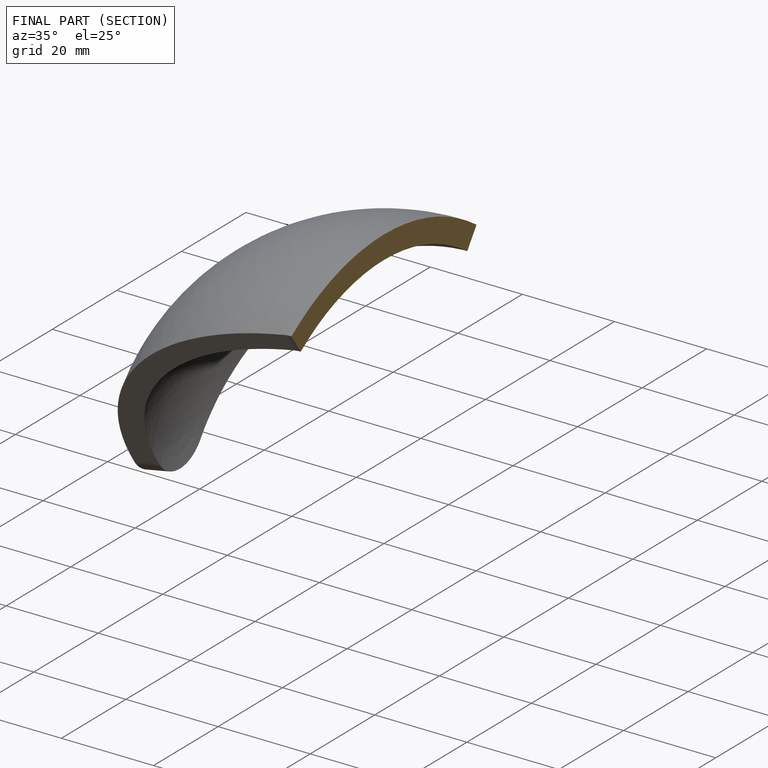
[diagram: finished part — half-section view (interior)]
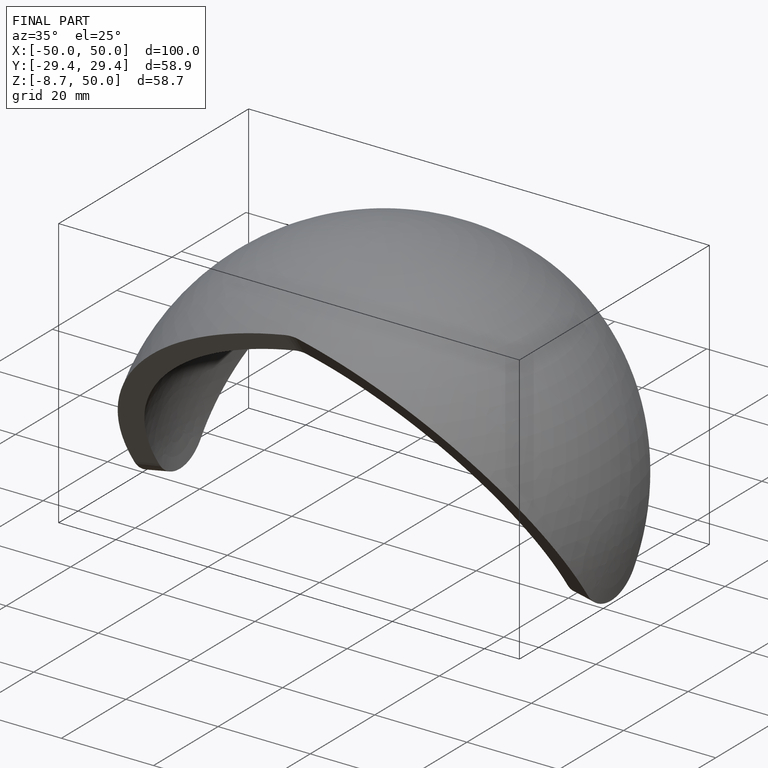
[diagram: finished part — iso view with bounding-box wireframe]
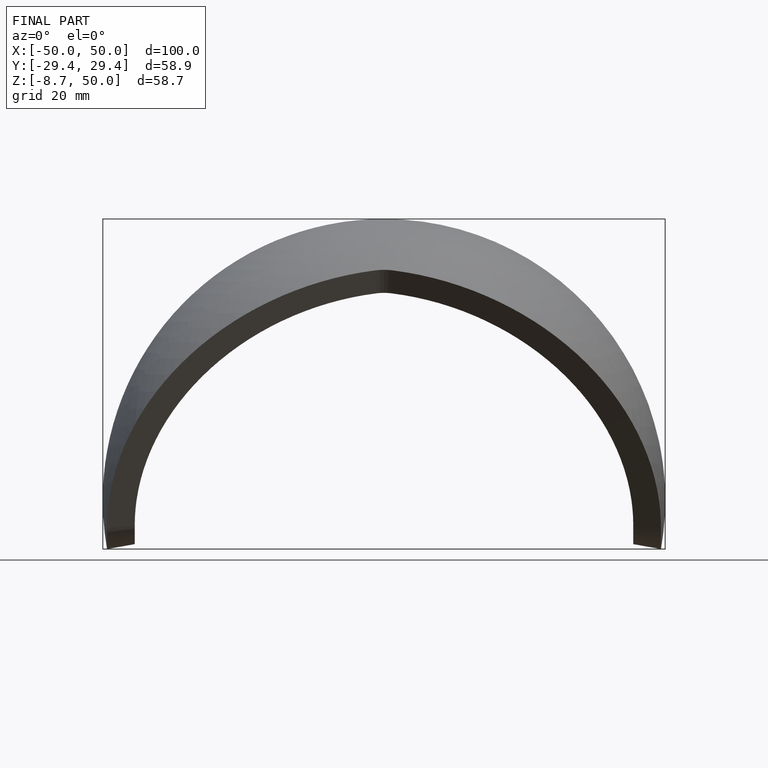
[diagram: finished part — front view with bounding-box wireframe]
